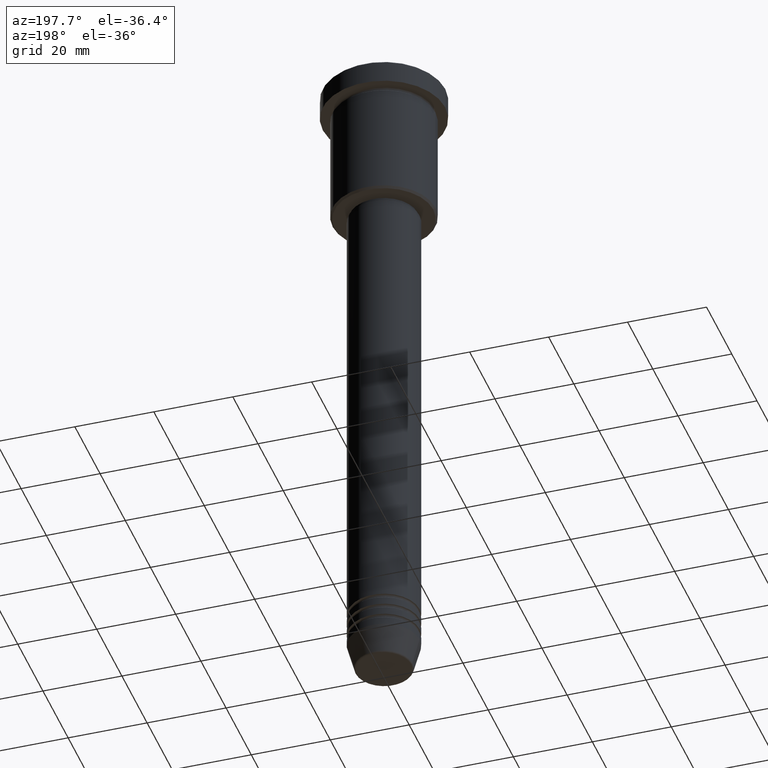
[diagram: clean part render]
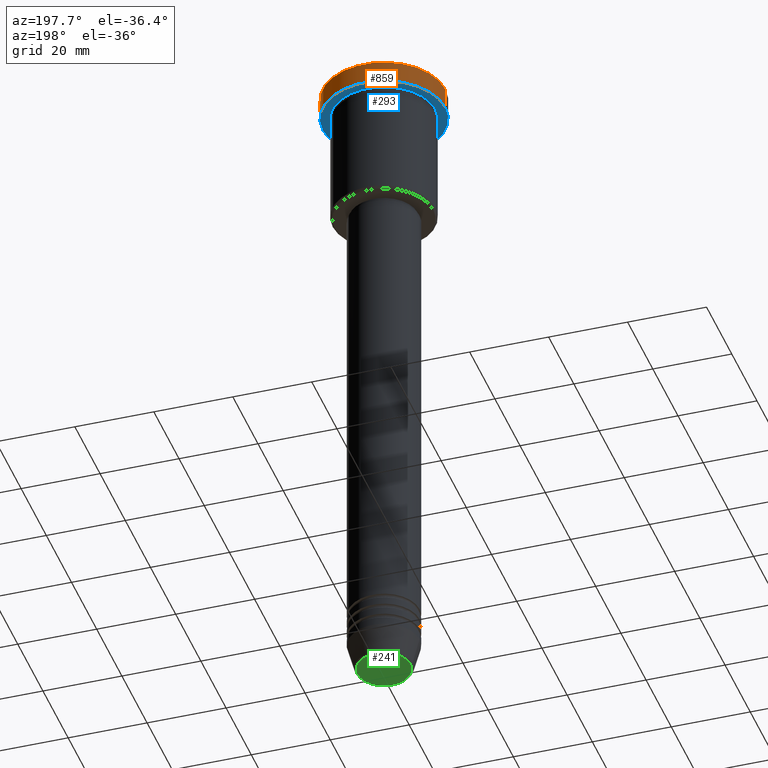
[diagram: same view with three faces highlighted in distinct colors, each labeled with its STEP entity id]
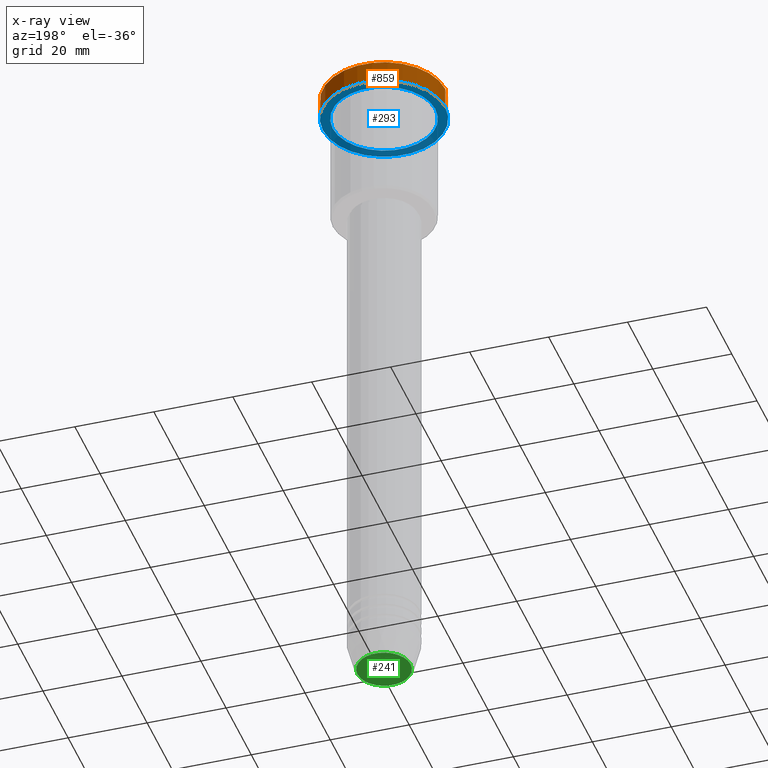
[diagram: x-ray of the same camera — body ghosted, the three highlighted faces saturated]
A machine part, auxiliary view with three faces highlighted in distinct colors.
The next image is the same camera in x-ray (body ghosted, the three faces saturated) — at least one of them is partly hidden behind the body in this view.
Their STEP definitions:

[orange] entity #859 — the highlighted cylindrical surface (partial cylindrical patch) has radius 15.5 mm, axis along (-0, -0, 1).
#15 = AXIS2_PLACEMENT_3D ( 'NONE', #851, #32, #402 ) ;
#32 = DIRECTION ( 'NONE',  ( 0.000000000000000000, 0.000000000000000000, -1.000000000000000000 ) ) ;
#115 = VECTOR ( 'NONE', #655, 1000.000000000000000 ) ;
#182 = VERTEX_POINT ( 'NONE', #896 ) ;
#184 = VERTEX_POINT ( 'NONE', #1010 ) ;
#264 = DIRECTION ( 'NONE',  ( -0.000000000000000000, -0.000000000000000000, 1.000000000000000000 ) ) ;
#290 = LINE ( 'NONE', #398, #115 ) ;
#297 = CARTESIAN_POINT ( 'NONE',  ( 0.000000000000000000, 0.000000000000000000, 0.000000000000000000 ) ) ;
#317 = EDGE_CURVE ( 'NONE', #182, #1049, #290, .T. ) ;
#357 = CARTESIAN_POINT ( 'NONE',  ( -15.50000000000000000, 1.898202538678397557E-15, 0.000000000000000000 ) ) ;
#360 = AXIS2_PLACEMENT_3D ( 'NONE', #297, #653, #1023 ) ;
#378 = EDGE_CURVE ( 'NONE', #184, #1049, #761, .T. ) ;
#398 = CARTESIAN_POINT ( 'NONE',  ( 15.50000000000000000, 0.000000000000000000, 0.000000000000000000 ) ) ;
#402 = DIRECTION ( 'NONE',  ( 1.000000000000000000, 0.000000000000000000, 0.000000000000000000 ) ) ;
#410 = DIRECTION ( 'NONE',  ( -0.000000000000000000, -0.000000000000000000, 1.000000000000000000 ) ) ;
#454 = EDGE_CURVE ( 'NONE', #182, #792, #975, .T. ) ;
#473 = CARTESIAN_POINT ( 'NONE',  ( -15.50000000000000000, 1.898202538678397557E-15, -5.999999999999995559 ) ) ;
#518 = CARTESIAN_POINT ( 'NONE',  ( 0.000000000000000000, 0.000000000000000000, -5.999999999999995559 ) ) ;
#631 = CARTESIAN_POINT ( 'NONE',  ( 15.50000000000000000, 0.000000000000000000, -0.5000000000000125455 ) ) ;
#653 = DIRECTION ( 'NONE',  ( -0.000000000000000000, -0.000000000000000000, 1.000000000000000000 ) ) ;
#655 = DIRECTION ( 'NONE',  ( -0.000000000000000000, -0.000000000000000000, 1.000000000000000000 ) ) ;
#747 = ORIENTED_EDGE ( 'NONE', *, *, #1120, .T. ) ;
#761 = CIRCLE ( 'NONE', #15, 15.50000000000000000 ) ;
#792 = VERTEX_POINT ( 'NONE', #473 ) ;
#851 = CARTESIAN_POINT ( 'NONE',  ( 0.000000000000000000, 0.000000000000000000, -0.5000000000000125455 ) ) ;
#853 = VECTOR ( 'NONE', #264, 1000.000000000000000 ) ;
#859 = ADVANCED_FACE ( 'NONE', ( #1018 ), #1107, .T. ) ;
#869 = DIRECTION ( 'NONE',  ( 1.000000000000000000, 0.000000000000000000, 0.000000000000000000 ) ) ;
#896 = CARTESIAN_POINT ( 'NONE',  ( 15.50000000000000000, 0.000000000000000000, -5.999999999999995559 ) ) ;
#926 = EDGE_LOOP ( 'NONE', ( #1022, #747, #1122, #973 ) ) ;
#973 = ORIENTED_EDGE ( 'NONE', *, *, #317, .F. ) ;
#975 = CIRCLE ( 'NONE', #1157, 15.50000000000000000 ) ;
#1010 = CARTESIAN_POINT ( 'NONE',  ( -15.50000000000000000, 1.898202538678397557E-15, -0.5000000000000125455 ) ) ;
#1018 = FACE_OUTER_BOUND ( 'NONE', #926, .T. ) ;
#1022 = ORIENTED_EDGE ( 'NONE', *, *, #454, .T. ) ;
#1023 = DIRECTION ( 'NONE',  ( 1.000000000000000000, 0.000000000000000000, 0.000000000000000000 ) ) ;
#1049 = VERTEX_POINT ( 'NONE', #631 ) ;
#1078 = LINE ( 'NONE', #357, #853 ) ;
#1107 = CYLINDRICAL_SURFACE ( 'NONE', #360, 15.50000000000000000 ) ;
#1120 = EDGE_CURVE ( 'NONE', #792, #184, #1078, .T. ) ;
#1122 = ORIENTED_EDGE ( 'NONE', *, *, #378, .T. ) ;
#1157 = AXIS2_PLACEMENT_3D ( 'NONE', #518, #410, #869 ) ;

[blue] entity #293 — the highlighted planar face has unit normal (0, 0, -1).
#5 = DIRECTION ( 'NONE',  ( -0.000000000000000000, -0.000000000000000000, 1.000000000000000000 ) ) ;
#58 = EDGE_CURVE ( 'NONE', #370, #951, #460, .T. ) ;
#182 = VERTEX_POINT ( 'NONE', #896 ) ;
#198 = DIRECTION ( 'NONE',  ( -1.000000000000000000, 0.000000000000000000, 0.000000000000000000 ) ) ;
#243 = CIRCLE ( 'NONE', #777, 13.00000000000000000 ) ;
#265 = ORIENTED_EDGE ( 'NONE', *, *, #389, .T. ) ;
#293 = ADVANCED_FACE ( 'NONE', ( #1020, #567 ), #491, .T. ) ;
#304 = CARTESIAN_POINT ( 'NONE',  ( 0.000000000000000000, 0.000000000000000000, -5.999999999999995559 ) ) ;
#370 = VERTEX_POINT ( 'NONE', #582 ) ;
#377 = DIRECTION ( 'NONE',  ( -1.000000000000000000, 0.000000000000000000, 0.000000000000000000 ) ) ;
#387 = CIRCLE ( 'NONE', #1170, 15.50000000000000000 ) ;
#389 = EDGE_CURVE ( 'NONE', #951, #370, #243, .T. ) ;
#392 = DIRECTION ( 'NONE',  ( -1.000000000000000000, 0.000000000000000000, -0.000000000000000000 ) ) ;
#405 = ORIENTED_EDGE ( 'NONE', *, *, #454, .F. ) ;
#410 = DIRECTION ( 'NONE',  ( -0.000000000000000000, -0.000000000000000000, 1.000000000000000000 ) ) ;
#438 = EDGE_LOOP ( 'NONE', ( #265, #736 ) ) ;
#454 = EDGE_CURVE ( 'NONE', #182, #792, #975, .T. ) ;
#460 = CIRCLE ( 'NONE', #910, 13.00000000000000000 ) ;
#473 = CARTESIAN_POINT ( 'NONE',  ( -15.50000000000000000, 1.898202538678397557E-15, -5.999999999999995559 ) ) ;
#491 = PLANE ( 'NONE',  #664 ) ;
#496 = CARTESIAN_POINT ( 'NONE',  ( -13.00000000000000000, 0.000000000000000000, -5.999999999999994671 ) ) ;
#518 = CARTESIAN_POINT ( 'NONE',  ( 0.000000000000000000, 0.000000000000000000, -5.999999999999995559 ) ) ;
#567 = FACE_OUTER_BOUND ( 'NONE', #634, .T. ) ;
#582 = CARTESIAN_POINT ( 'NONE',  ( 13.00000000000000000, 1.592040838891559095E-15, -5.999999999999994671 ) ) ;
#634 = EDGE_LOOP ( 'NONE', ( #405, #1017 ) ) ;
#656 = DIRECTION ( 'NONE',  ( -0.000000000000000000, -0.000000000000000000, 1.000000000000000000 ) ) ;
#664 = AXIS2_PLACEMENT_3D ( 'NONE', #918, #841, #392 ) ;
#736 = ORIENTED_EDGE ( 'NONE', *, *, #58, .T. ) ;
#748 = EDGE_CURVE ( 'NONE', #792, #182, #387, .T. ) ;
#777 = AXIS2_PLACEMENT_3D ( 'NONE', #830, #5, #377 ) ;
#792 = VERTEX_POINT ( 'NONE', #473 ) ;
#830 = CARTESIAN_POINT ( 'NONE',  ( 0.000000000000000000, 0.000000000000000000, -5.999999999999995559 ) ) ;
#841 = DIRECTION ( 'NONE',  ( 0.000000000000000000, 0.000000000000000000, -1.000000000000000000 ) ) ;
#869 = DIRECTION ( 'NONE',  ( 1.000000000000000000, 0.000000000000000000, 0.000000000000000000 ) ) ;
#896 = CARTESIAN_POINT ( 'NONE',  ( 15.50000000000000000, 0.000000000000000000, -5.999999999999995559 ) ) ;
#910 = AXIS2_PLACEMENT_3D ( 'NONE', #924, #656, #198 ) ;
#918 = CARTESIAN_POINT ( 'NONE',  ( 0.000000000000000000, 15.50000000000000000, -5.999999999999995559 ) ) ;
#924 = CARTESIAN_POINT ( 'NONE',  ( 0.000000000000000000, 0.000000000000000000, -5.999999999999995559 ) ) ;
#951 = VERTEX_POINT ( 'NONE', #496 ) ;
#975 = CIRCLE ( 'NONE', #1157, 15.50000000000000000 ) ;
#1017 = ORIENTED_EDGE ( 'NONE', *, *, #748, .F. ) ;
#1020 = FACE_BOUND ( 'NONE', #438, .T. ) ;
#1093 = DIRECTION ( 'NONE',  ( 1.000000000000000000, 0.000000000000000000, 0.000000000000000000 ) ) ;
#1113 = DIRECTION ( 'NONE',  ( -0.000000000000000000, -0.000000000000000000, 1.000000000000000000 ) ) ;
#1157 = AXIS2_PLACEMENT_3D ( 'NONE', #518, #410, #869 ) ;
#1170 = AXIS2_PLACEMENT_3D ( 'NONE', #304, #1113, #1093 ) ;

[green] entity #241 — the highlighted planar face has unit normal (0, -0, 1).
#41 = FACE_OUTER_BOUND ( 'NONE', #533, .T. ) ;
#64 = CARTESIAN_POINT ( 'NONE',  ( 6.740692158992664496, 0.000000000000000000, -170.9999999999999716 ) ) ;
#66 = AXIS2_PLACEMENT_3D ( 'NONE', #614, #790, #167 ) ;
#83 = CARTESIAN_POINT ( 'NONE',  ( 0.000000000000000000, 0.000000000000000000, -170.9999999999999716 ) ) ;
#97 = CARTESIAN_POINT ( 'NONE',  ( -6.740692158992664496, 8.550696569392693570E-16, -170.9999999999999716 ) ) ;
#167 = DIRECTION ( 'NONE',  ( 1.000000000000000000, 0.000000000000000000, 0.000000000000000000 ) ) ;
#217 = VERTEX_POINT ( 'NONE', #97 ) ;
#241 = ADVANCED_FACE ( 'NONE', ( #41 ), #883, .F. ) ;
#307 = ORIENTED_EDGE ( 'NONE', *, *, #1050, .T. ) ;
#453 = DIRECTION ( 'NONE',  ( 0.000000000000000000, 0.000000000000000000, -1.000000000000000000 ) ) ;
#533 = EDGE_LOOP ( 'NONE', ( #638, #307 ) ) ;
#572 = VERTEX_POINT ( 'NONE', #64 ) ;
#598 = CARTESIAN_POINT ( 'NONE',  ( 0.000000000000000000, 0.000000000000000000, -170.9999999999999716 ) ) ;
#614 = CARTESIAN_POINT ( 'NONE',  ( 0.000000000000000000, 0.000000000000000000, -170.9999999999999716 ) ) ;
#624 = AXIS2_PLACEMENT_3D ( 'NONE', #598, #965, #752 ) ;
#638 = ORIENTED_EDGE ( 'NONE', *, *, #1138, .T. ) ;
#752 = DIRECTION ( 'NONE',  ( 1.000000000000000000, 0.000000000000000000, 0.000000000000000000 ) ) ;
#774 = CIRCLE ( 'NONE', #906, 6.740692158992664496 ) ;
#790 = DIRECTION ( 'NONE',  ( 0.000000000000000000, 0.000000000000000000, -1.000000000000000000 ) ) ;
#883 = PLANE ( 'NONE',  #624 ) ;
#906 = AXIS2_PLACEMENT_3D ( 'NONE', #83, #453, #1174 ) ;
#965 = DIRECTION ( 'NONE',  ( 0.000000000000000000, -0.000000000000000000, 1.000000000000000000 ) ) ;
#1050 = EDGE_CURVE ( 'NONE', #217, #572, #1151, .T. ) ;
#1138 = EDGE_CURVE ( 'NONE', #572, #217, #774, .T. ) ;
#1151 = CIRCLE ( 'NONE', #66, 6.740692158992664496 ) ;
#1174 = DIRECTION ( 'NONE',  ( 1.000000000000000000, 0.000000000000000000, 0.000000000000000000 ) ) ;